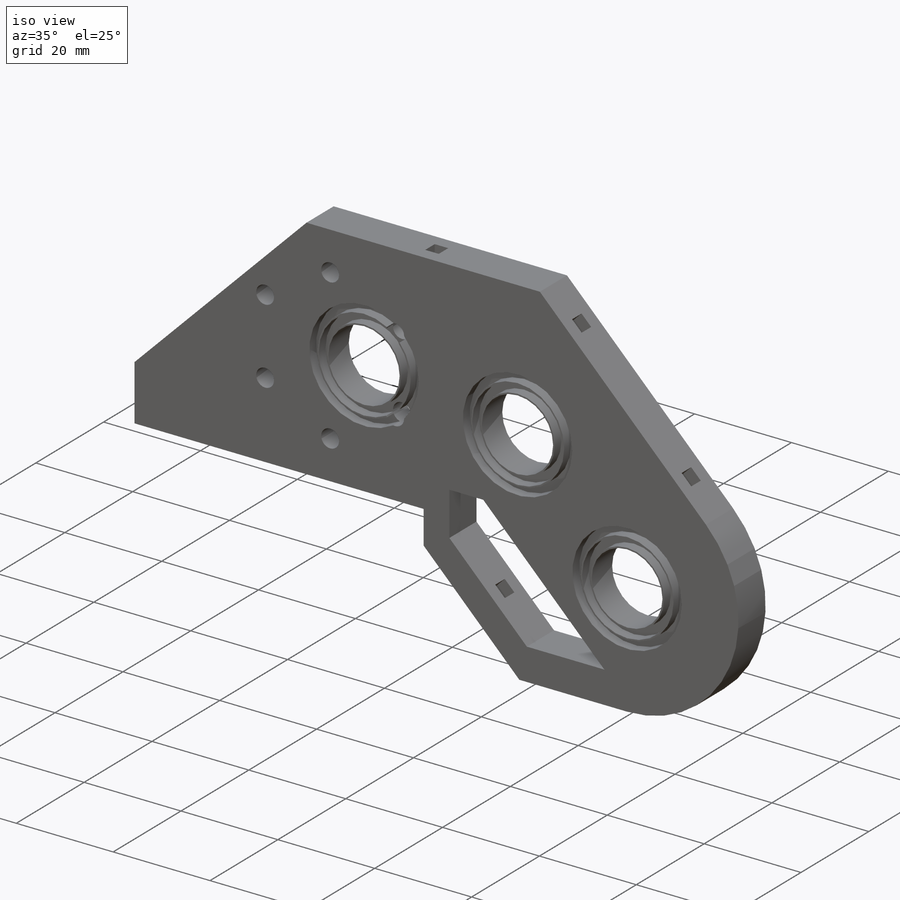
[diagram: iso view]
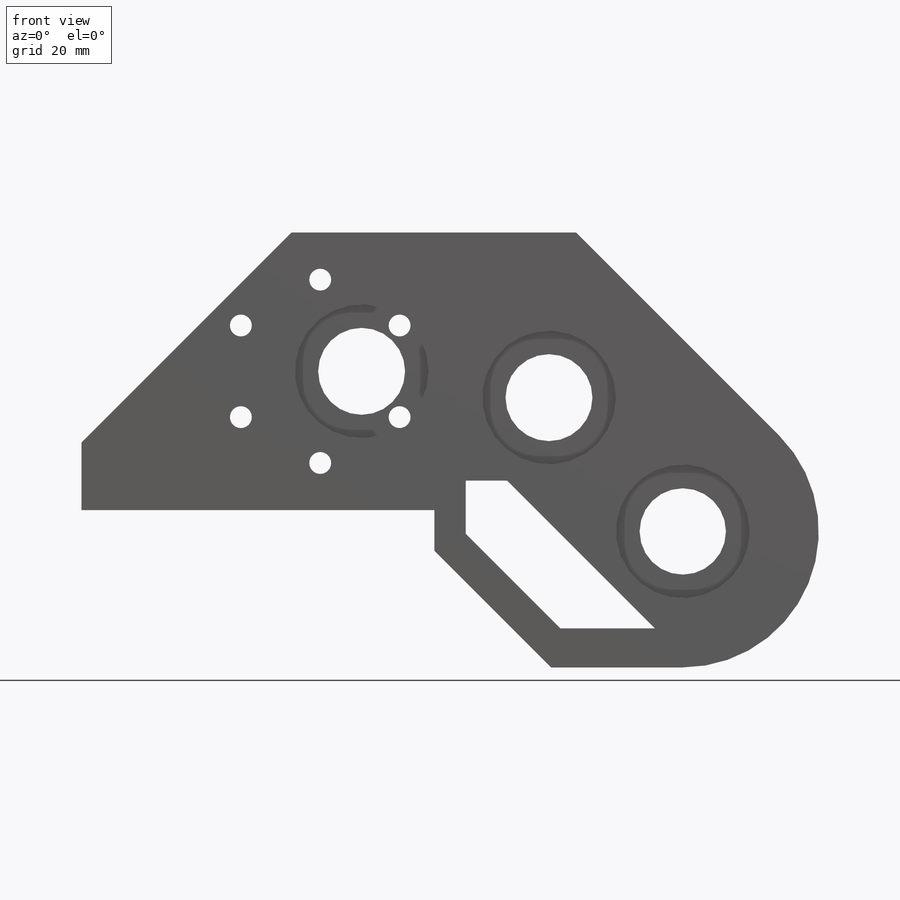
[diagram: front view]
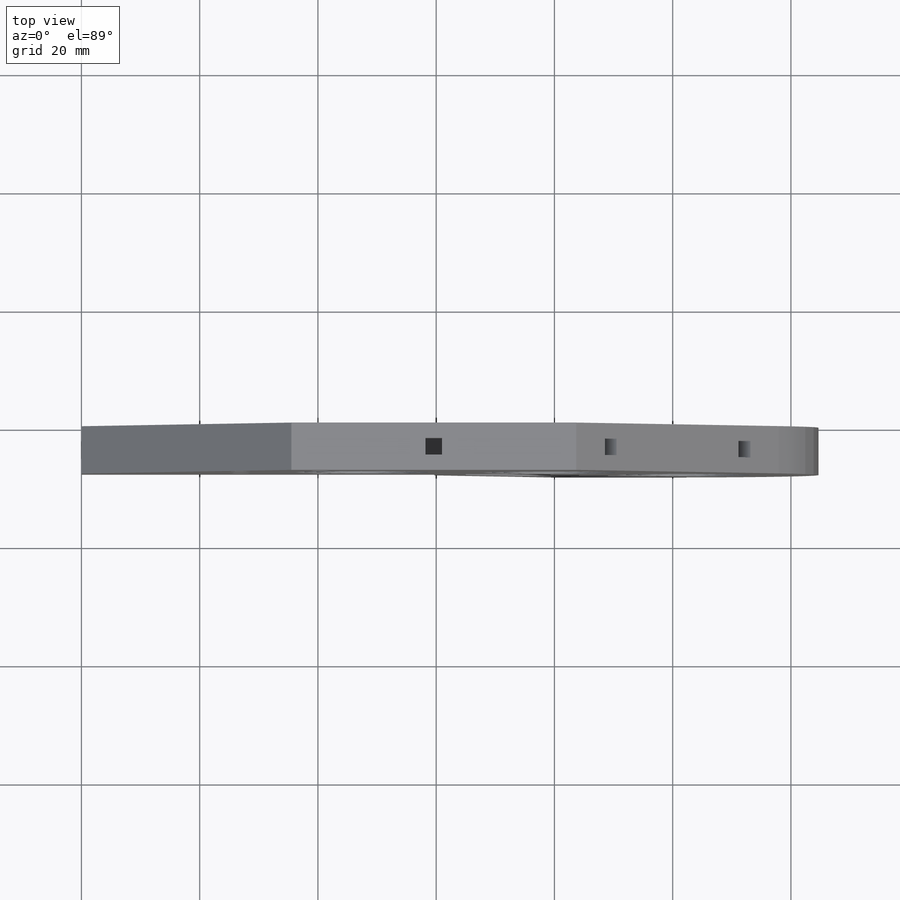
[diagram: top view]
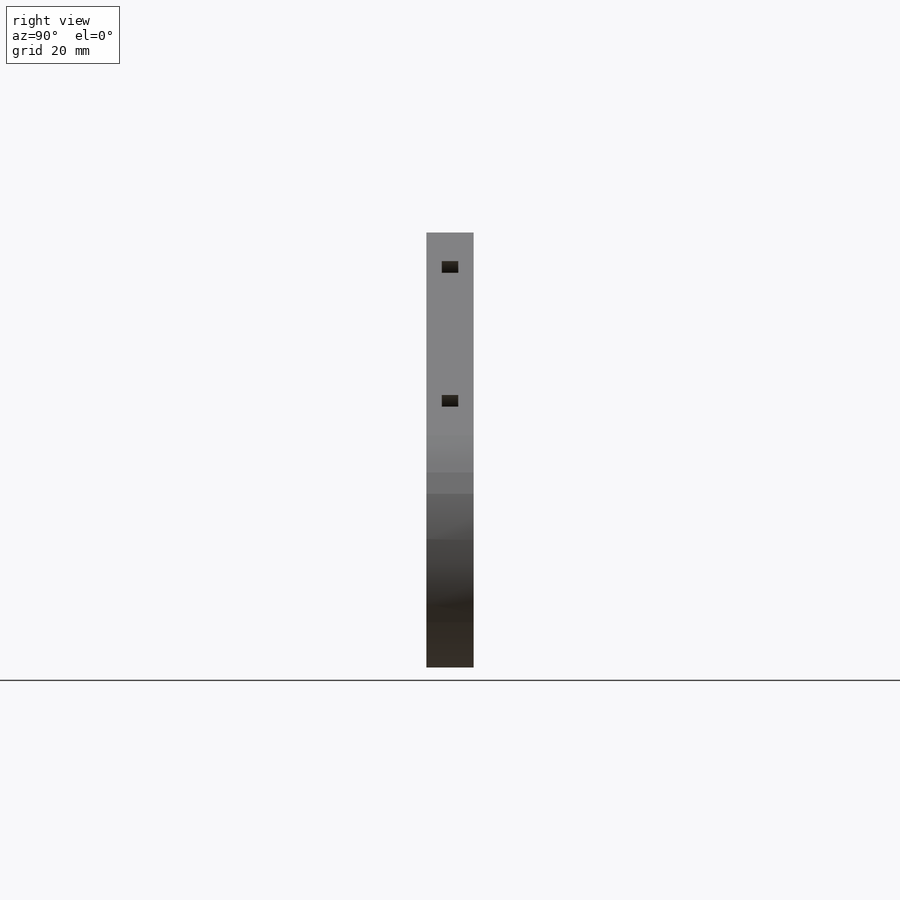
[diagram: right view]
SOLIDWORKS PART (.sldprt)
format: sldprt  version: not decoded by parser v0  size: 407,552 bytes
history: native  units: mm
features: sketch x11, cut_extrude x7, plane x3, extrude x3, material x1 (+10 scaffold rows collapsed)
feature tree (35):
  scaffold x10  (default folders/planes/origin — collapsed)
  material  "Material <não especificado>"
  plane  "Plano frontal"
  plane  "Plano superior"
  plane  "Plano direito"
  sketch  "Model"
  sketch  "Esboço2"
  sketch  "Esboço3"
  extrude  "Ressalto-extrusão1"  Depth=8mm
  sketch  "Esboço4"
  cut_extrude  "Corte-extrusão1"  Depth=2mm
  cut_extrude  "Corte-extrusão2"  Depth=2mm
  cut_extrude  "Corte-extrusão4"  Depth=2mm
  sketch  "Esboço7"  dims[c1.D1=2.8mm c1.D2=2.8mm c2.D1=~0.724703mm]
  cut_extrude  "Corte-extrusão6"  Depth=6mm
  sketch  "Esboço8"  dims[D1=2.8mm D2=2.8mm]
  cut_extrude  "Corte-extrusão7"  Depth=6mm
  sketch  "Esboço10"  dims[D1=2.8mm D2=2.8mm]
  cut_extrude  "Corte-extrusão9"  Depth=6mm
  sketch  "Esboço13"  dims[D1=20.0mm D2=~11.441936mm D3=~31.441936mm]
  extrude  "Ressalto-extrusão3"  [1 undecoded]
  sketch  "Esboço6"  dims[c1.D1=3.0mm c1.D3=3.0mm c2.D1=19.0mm c2.D2=16.0mm c2.D3=~0.385675mm]
  cut_extrude  "Corte-extrusão5"  Depth=10mm
  sketch  "Esboço15"
  extrude  "Ressalto-extrusão4"  [1 undecoded]
  sketch  "Esboço14"  dims[D1=~23.758788mm]
decode coverage: 14 of 21 modeling features carry decoded parameters
note: ~ marks probable driven/reference dimensions
note: 2 parameter values undecoded
note: suppression state not decoded; provenance and decode notes live in map.json
